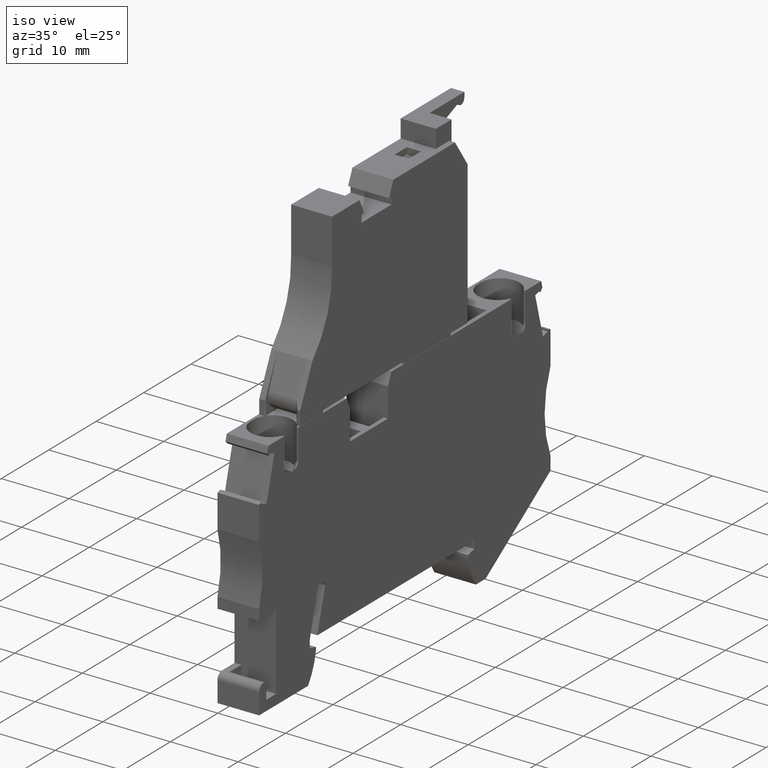
[diagram: clean part render]
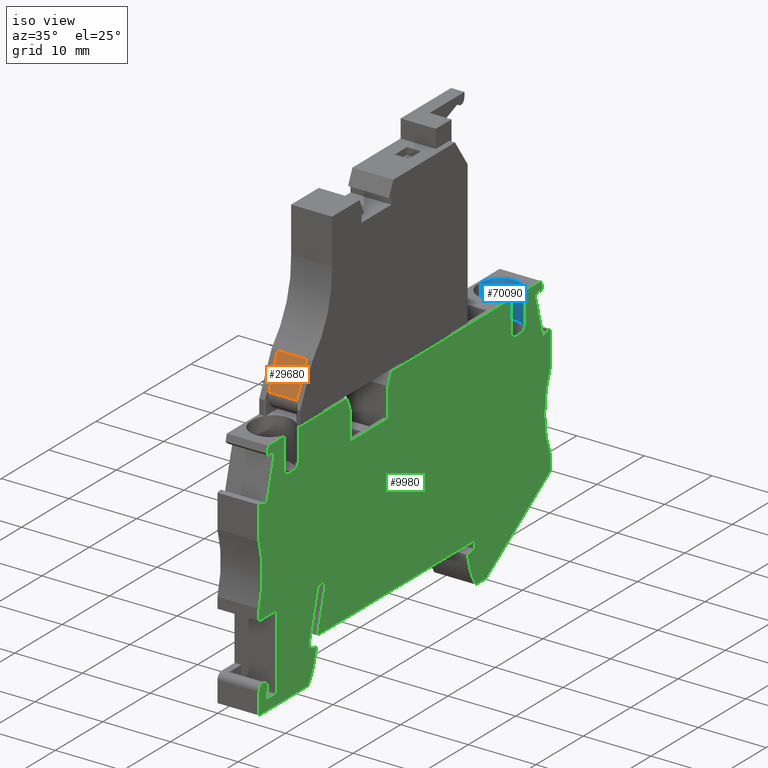
[diagram: same view with three faces highlighted in distinct colors, each labeled with its STEP entity id]
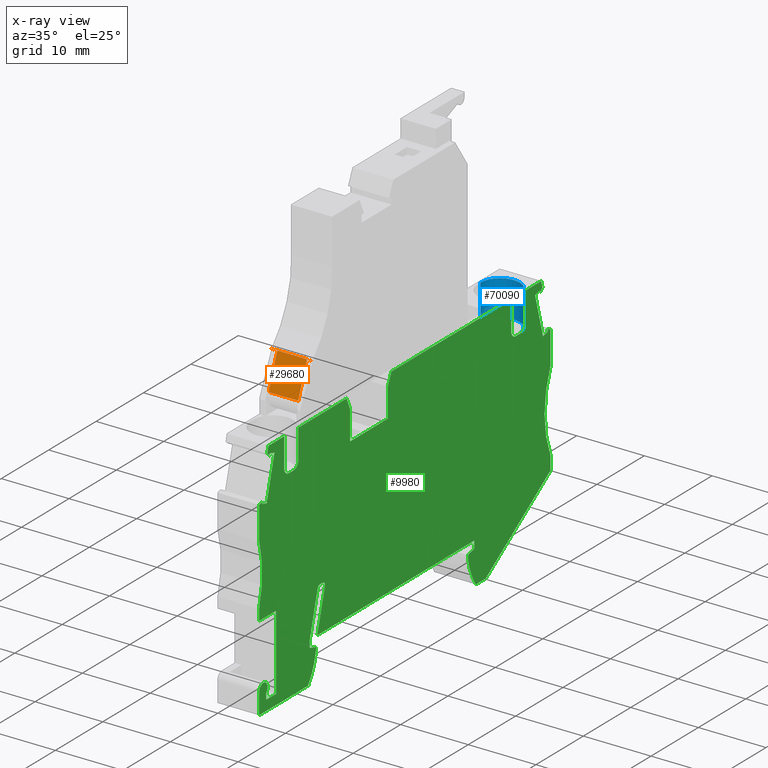
[diagram: x-ray of the same camera — body ghosted, the three highlighted faces saturated]
A machine part, iso view with three faces highlighted in distinct colors.
The next image is the same camera in x-ray (body ghosted, the three faces saturated) — at least one of them is partly hidden behind the body in this view.
Their STEP definitions:

[orange] entity #29680 — the highlighted planar face has unit normal (0, -0.9361, 0.3518).
#28970=CARTESIAN_POINT('',(-36.204426536731,26.8215328246752,
1.0500000034725));
#28980=DIRECTION('',(-0.936062640945186,0.351833387026763,0.));
#28990=DIRECTION('',(0.351833387026763,0.936062640945186,0.));
#29000=AXIS2_PLACEMENT_3D('',#28970,#28980,#28990);
#29010=PLANE('',#29000);
#29020=CARTESIAN_POINT('',(-48.7956797402226,-6.67785114815208,
-4.1999999965275));
#29030=DIRECTION('',(0.351833387026763,0.936062640945186,0.));
#29040=VECTOR('',#29030,1.);
#29050=LINE('',#29020,#29040);
#29060=CARTESIAN_POINT('',(-38.0285189992763,21.9684834246521,
-4.1999999965275));
#29070=VERTEX_POINT('',#29060);
#29080=CARTESIAN_POINT('',(-36.2089068698543,26.8096127721436,
-4.1999999965275));
#29090=VERTEX_POINT('',#29080);
#29100=EDGE_CURVE('',#29070,#29090,#29050,.T.);
#29110=ORIENTED_EDGE('',*,*,#29100,.F.);
#29120=CARTESIAN_POINT('',(-36.2089068698543,26.8096127721437,
-1.7999999965275));
#29130=DIRECTION('',(0.,0.,1.));
#29140=VECTOR('',#29130,1.);
#29150=LINE('',#29120,#29140);
#29160=CARTESIAN_POINT('',(-36.2089068698543,26.8096127721436,
-5.0749999965275));
#29170=VERTEX_POINT('',#29160);
#29180=EDGE_CURVE('',#29170,#29090,#29150,.T.);
#29190=ORIENTED_EDGE('',*,*,#29180,.T.);
#29200=CARTESIAN_POINT('',(-48.7956797402226,-6.67785114815199,
-5.0749999965275));
#29210=DIRECTION('',(-0.351833387026763,-0.936062640945186,0.));
#29220=VECTOR('',#29210,1.);
#29230=LINE('',#29200,#29220);
#29240=CARTESIAN_POINT('',(-36.204426536731,26.8215328246752,
-5.0749999965275));
#29250=VERTEX_POINT('',#29240);
#29260=EDGE_CURVE('',#29250,#29170,#29230,.T.);
#29270=ORIENTED_EDGE('',*,*,#29260,.T.);
#29280=CARTESIAN_POINT('',(-36.204426536731,26.8215328246752,
1.0500000034725));
#29290=DIRECTION('',(0.,0.,1.));
#29300=VECTOR('',#29290,1.);
#29310=LINE('',#29280,#29300);
#29320=CARTESIAN_POINT('',(-36.204426536731,26.8215328246752,
0.974999999999994));
#29330=VERTEX_POINT('',#29320);
#29340=EDGE_CURVE('',#29250,#29330,#29310,.T.);
#29350=ORIENTED_EDGE('',*,*,#29340,.F.);
#29360=CARTESIAN_POINT('',(-48.7956797402226,-6.67785114815199,
0.974999999999994));
#29370=DIRECTION('',(0.351833387026763,0.936062640945186,0.));
#29380=VECTOR('',#29370,1.);
#29390=LINE('',#29360,#29380);
#29400=CARTESIAN_POINT('',(-36.2089068698543,26.8096127721436,
0.974999999999994));
#29410=VERTEX_POINT('',#29400);
#29420=EDGE_CURVE('',#29410,#29330,#29390,.T.);
#29430=ORIENTED_EDGE('',*,*,#29420,.T.);
#29440=CARTESIAN_POINT('',(-36.2089068698543,26.8096127721437,
-1.7999999965275));
#29450=DIRECTION('',(0.,0.,1.));
#29460=VECTOR('',#29450,1.);
#29470=LINE('',#29440,#29460);
#29480=CARTESIAN_POINT('',(-36.2089068698543,26.8096127721436,
0.150000003472497));
#29490=VERTEX_POINT('',#29480);
#29500=EDGE_CURVE('',#29490,#29410,#29470,.T.);
#29510=ORIENTED_EDGE('',*,*,#29500,.T.);
#29520=CARTESIAN_POINT('',(-48.7956797402226,-6.67785114815208,
0.150000003472497));
#29530=DIRECTION('',(-0.351833387026763,-0.936062640945186,0.));
#29540=VECTOR('',#29530,1.);
#29550=LINE('',#29520,#29540);
#29560=CARTESIAN_POINT('',(-38.0285189992763,21.9684834246521,
0.150000003472497));
#29570=VERTEX_POINT('',#29560);
#29580=EDGE_CURVE('',#29490,#29570,#29550,.T.);
#29590=ORIENTED_EDGE('',*,*,#29580,.F.);
#29600=CARTESIAN_POINT('',(-38.0285189992763,21.9684834246521,
1.0500000034725));
#29610=DIRECTION('',(0.,0.,1.));
#29620=VECTOR('',#29610,1.);
#29630=LINE('',#29600,#29620);
#29640=EDGE_CURVE('',#29070,#29570,#29630,.T.);
#29650=ORIENTED_EDGE('',*,*,#29640,.T.);
#29660=EDGE_LOOP('',(#29650,#29590,#29510,#29430,#29350,#29270,#29190,
#29110));
#29670=FACE_OUTER_BOUND('',#29660,.T.);
#29680=ADVANCED_FACE('',(#29670),#29010,.T.);

[blue] entity #70090 — the highlighted cylindrical surface (edge-blend (fillet) strip) has radius 2.9 mm, axis along (0, -0, 1).
#18180=CARTESIAN_POINT('',(8.7,19.0500000000001,0.740075756488798));
#18190=VERTEX_POINT('',#18180);
#18220=CARTESIAN_POINT('',(7.49999999999996,19.0500000000001,-1.9));
#18230=DIRECTION('',(7.105427357601E-15,-1.,-1.11022302462516E-16));
#18240=DIRECTION('',(1.,7.105427357601E-15,-1.51526992781977E-34));
#18250=AXIS2_PLACEMENT_3D('',#18220,#18230,#18240);
#18260=CIRCLE('',#18250,2.9);
#18270=CARTESIAN_POINT('',(7.49999999999999,19.0500000000001,
-4.80000000000001));
#18280=VERTEX_POINT('',#18270);
#18290=EDGE_CURVE('',#18280,#18190,#18260,.T.);
#65570=CARTESIAN_POINT('',(7.5,13.7499999999996,-4.80000000000001));
#65580=VERTEX_POINT('',#65570);
#65610=CARTESIAN_POINT('',(7.5,13.7499999999996,-1.90000000000001));
#65620=DIRECTION('',(-3.52209750882182E-15,1.,8.61273212099416E-17));
#65630=DIRECTION('',(-8.39331519952022E-32,8.61273212099416E-17,-1.));
#65640=AXIS2_PLACEMENT_3D('',#65610,#65620,#65630);
#65650=CIRCLE('',#65640,2.9);
#65660=CARTESIAN_POINT('',(7.70000000000005,13.7499999999996,
0.993095228297882));
#65670=VERTEX_POINT('',#65660);
#65680=EDGE_CURVE('',#65670,#65580,#65650,.T.);
#68790=CARTESIAN_POINT('',(7.70000000000005,14.7499999999996,
-1.7999999965275));
#68800=DIRECTION('',(5.42824862998643E-32,0.,1.));
#68810=DIRECTION('',(1.,0.,-5.42824862998643E-32));
#68820=AXIS2_PLACEMENT_3D('',#68790,#68800,#68810);
#68830=CYLINDRICAL_SURFACE('',#68820,1.);
#68860=CARTESIAN_POINT('',(7.49999999999998,16.0499999999995,-1.9));
#68870=DIRECTION('',(-7.105427357601E-15,1.,1.11022302462516E-16));
#68880=DIRECTION('',(1.,7.105427357601E-15,-1.51526992781977E-34));
#68890=AXIS2_PLACEMENT_3D('',#68860,#68870,#68880);
#68900=CYLINDRICAL_SURFACE('',#68890,2.9);
#68910=CARTESIAN_POINT('',(7.70000000000799,13.7499999999996,
0.993095228297332));
#68920=CARTESIAN_POINT('',(7.71651364547582,13.7499999999997,
0.991953638120351));
#68930=CARTESIAN_POINT('',(7.7330215891157,13.7504093540227,
0.990670195700232));
#68940=CARTESIAN_POINT('',(7.7494903154487,13.7512253964594,
0.989248099851811));
#68950=CARTESIAN_POINT('',(7.76596134597498,13.7520415530714,
0.987825805033316));
#68960=CARTESIAN_POINT('',(7.78238297808014,13.7532635333169,
0.986265862354011));
#68970=CARTESIAN_POINT('',(7.79875065593857,13.7548877912755,
0.984570686527939));
#68980=CARTESIAN_POINT('',(7.81512258012449,13.7565124706214,
0.982875070916103));
#68990=CARTESIAN_POINT('',(7.83145342696692,13.7585413666225,
0.981042660288794));
#69000=CARTESIAN_POINT('',(7.84771163076227,13.7609695282053,
0.979079127400397));
#69010=CARTESIAN_POINT('',(7.86396982799423,13.7633976888079,
0.977115595304674));
#69020=CARTESIAN_POINT('',(7.88015509534979,13.7662250722532,
0.975020979484978));
#69030=CARTESIAN_POINT('',(7.89623642830969,13.7694433906168,
0.97280293317874));
#69040=CARTESIAN_POINT('',(7.92839394645242,13.7758789971318,
0.968367550582524));
#69050=CARTESIAN_POINT('',(7.96012595861505,13.7838713823479,
0.963440622605584));
#69060=CARTESIAN_POINT('',(7.99141732697047,13.793403982058,
0.958060358136819));
#69070=CARTESIAN_POINT('',(8.00705543360096,13.7981679734898,
0.955371528792345));
#69080=CARTESIAN_POINT('',(8.02256588253471,13.8033123844395,
0.952572364357332));
#69090=CARTESIAN_POINT('',(8.03792145314049,13.8088256848445,
0.949673755055333));
#69100=CARTESIAN_POINT('',(8.05327703039631,13.8143389876371,
0.946775144498034));
#69110=CARTESIAN_POINT('',(8.06847751743933,13.8202210985288,
0.943777139406916));
#69120=CARTESIAN_POINT('',(8.08349711934313,13.8264579276198,
0.940692012823328));
#69130=CARTESIAN_POINT('',(8.09852200770671,13.8326969518919,
0.937605800365581));
#69140=CARTESIAN_POINT('',(8.11334081361339,13.8392789256607,
0.934438016217834));
#69150=CARTESIAN_POINT('',(8.12801157426129,13.8462267472982,
0.931183756416003));
#69160=CARTESIAN_POINT('',(8.14268163047964,13.8531742353299,
0.927929652870337));
#69170=CARTESIAN_POINT('',(8.15719080534908,13.860483027759,
0.924591489279415));
#69180=CARTESIAN_POINT('',(8.17151593970687,13.8681424612747,
0.921181728056292));
#69190=CARTESIAN_POINT('',(8.20016661966412,13.8834615481907,
0.914362107723639));
#69200=CARTESIAN_POINT('',(8.22807810075664,13.9001841469548,
0.907255629295271));
#69210=CARTESIAN_POINT('',(8.25507592222289,13.9182003122272,
0.899975062688316));
#69220=CARTESIAN_POINT('',(8.28207375311593,13.9362164837902,
0.892694493539218));
#69230=CARTESIAN_POINT('',(8.30815381873164,13.9555233881669,
0.885241325083818));
#69240=CARTESIAN_POINT('',(8.33316491507566,13.9759830813746,
0.877739408995529));
#69250=CARTESIAN_POINT('',(8.34567031848143,13.9862128095561,
0.873988494373079));
#69260=CARTESIAN_POINT('',(8.35790854445817,13.9967300639378,
0.870225618825389));
#69270=CARTESIAN_POINT('',(8.36986345143471,14.0075156860696,
0.86646662294308));
#69280=CARTESIAN_POINT('',(8.38181593328862,14.0182991202751,
0.862708389595013));
#69290=CARTESIAN_POINT('',(8.39353611835936,14.0293967223635,
0.858937999448716));
#69300=CARTESIAN_POINT('',(8.4050031236605,14.0407958011757,
0.85517138235803));
#69310=CARTESIAN_POINT('',(8.42793722439056,14.063594048394,
0.847638118571986));
#69320=CARTESIAN_POINT('',(8.44985543402762,14.0875982765376,
0.840120281755448));
#69330=CARTESIAN_POINT('',(8.47059745790219,14.1126778225426,
0.832753295618532));
#69340=CARTESIAN_POINT('',(8.49133934364659,14.1377572015319,
0.825386358541582));
#69350=CARTESIAN_POINT('',(8.510901835242,14.1639082374768,
0.818171882525787));
#69360=CARTESIAN_POINT('',(8.52914828381245,14.1909712677752,
0.811245804040397));
#69370=CARTESIAN_POINT('',(8.5473948576908,14.2180344839296,
0.804319677990008));
#69380=CARTESIAN_POINT('',(8.56432261285956,14.2460053478474,
0.797683538937366));
#69390=CARTESIAN_POINT('',(8.57982757468844,14.2747069968763,
0.791462875267371));
#69400=CARTESIAN_POINT('',(8.58757998246785,14.2890576860085,
0.78835257277449));
#69410=CARTESIAN_POINT('',(8.59497699447864,14.3035904489144,
0.78534600659968));
#69420=CARTESIAN_POINT('',(8.60200892647044,14.3182826195668,
0.78245714336305));
#69430=CARTESIAN_POINT('',(8.60903529241892,14.3329631608038,
0.779570566772243));
#69440=CARTESIAN_POINT('',(8.61572454033382,14.347859304485,
0.776790253875897));
#69450=CARTESIAN_POINT('',(8.62206725615206,14.3629703175044,
0.774128843693097));
#69460=CARTESIAN_POINT('',(8.62840913823382,14.3780793442134,
0.771467783346995));
#69470=CARTESIAN_POINT('',(8.63440060265592,14.393394878581,
0.768927249864573));
#69480=CARTESIAN_POINT('',(8.64002322522107,14.4088895544763,
0.766523400601717));
#69490=CARTESIAN_POINT('',(8.64564582965089,14.4243841803948,
0.764119559092287));
#69500=CARTESIAN_POINT('',(8.65089946982369,14.4400576782165,
0.761852474034192));
#69510=CARTESIAN_POINT('',(8.65576842202222,14.4558797465908,
0.759736707769446));
#69520=CARTESIAN_POINT('',(8.66063736673384,14.4717017906357,
0.757620944758086));
#69530=CARTESIAN_POINT('',(8.66512151487049,14.4876720977453,
0.755656566760995));
#69540=CARTESIAN_POINT('',(8.66920843659534,14.5037582358073,
0.753855993039991));
#69550=CARTESIAN_POINT('',(8.67329535919614,14.5198443773171,
0.752055418933069));
#69560=CARTESIAN_POINT('',(8.67698496684321,14.5360460109789,
0.750418704664186));
#69570=CARTESIAN_POINT('',(8.68026852770263,14.552329532818,
0.748955681493112));
#69580=CARTESIAN_POINT('',(8.68355209550207,14.5686130890733,
0.747492655229847));
#69590=CARTESIAN_POINT('',(8.68642955447926,14.5849781738373,
0.746203360462804));
#69600=CARTESIAN_POINT('',(8.68889605446914,14.6013911393773,
0.745094737749044));
#69610=CARTESIAN_POINT('',(8.69136256490385,14.6178041744209,
0.743986110340627));
#69620=CARTESIAN_POINT('',(8.69341808664726,14.6342647246701,
0.743058176434919));
#69630=CARTESIAN_POINT('',(8.69506157160451,14.6507403973606,
0.742314863916511));
#69640=CARTESIAN_POINT('',(8.69670594629765,14.6672249895105,
0.741571148989903));
#69650=CARTESIAN_POINT('',(8.69793592189138,14.6836807785439,
0.741013128870277));
#69660=CARTESIAN_POINT('',(8.69876038465499,14.7002235593483,
0.740638850767328));
#69670=CARTESIAN_POINT('',(8.69958475202393,14.7167644260661,
0.74026461597032));
#69680=CARTESIAN_POINT('',(8.70000000000007,14.7333678115897,
0.740075756488782));
#69690=CARTESIAN_POINT('',(8.70000000000005,14.7500000000008,
0.740075756488791));
#69700=B_SPLINE_CURVE_WITH_KNOTS('',3,(#68910,#68920,#68930,#68940,
#68950,#68960,#68970,#68980,#68990,#69000,#69010,#69020,#69030,#69040,
#69050,#69060,#69070,#69080,#69090,#69100,#69110,#69120,#69130,#69140,
#69150,#69160,#69170,#69180,#69190,#69200,#69210,#69220,#69230,#69240,
#69250,#69260,#69270,#69280,#69290,#69300,#69310,#69320,#69330,#69340,
#69350,#69360,#69370,#69380,#69390,#69400,#69410,#69420,#69430,#69440,
#69450,#69460,#69470,#69480,#69490,#69500,#69510,#69520,#69530,#69540,
#69550,#69560,#69570,#69580,#69590,#69600,#69610,#69620,#69630,#69640,
#69650,#69660,#69670,#69680,#69690),.UNSPECIFIED.,.F.,.F.,(4,3,3,3,3,3,3
,3,3,3,3,3,3,3,3,3,3,3,3,3,3,3,3,3,3,3,4),(0.,0.0496603814106529,
0.0992832165273295,0.14893066883405,0.198593465825866,0.297887334083293,
0.347599625450527,0.397290794990891,0.446921845132689,0.496655688566395,
0.596382573087288,0.696075308985867,0.745760524508754,0.79546366852819,
0.895362262553768,0.995504221933677,1.09540137789537,1.14512522769704,
1.19481638298259,1.2447100985559,1.29473625881006,1.34481771463799,
1.39487875970535,1.4448486379561,1.49466529277264,1.5443209152102,
1.59412217653465),.UNSPECIFIED.);
#69710=SURFACE_CURVE('',#69700,(#68830,#68900),.CURVE_3D.);
#69720=CARTESIAN_POINT('',(8.70000000000003,14.7499999999996,
0.740075756488798));
#69730=VERTEX_POINT('',#69720);
#69740=EDGE_CURVE('',#65670,#69730,#69710,.T.);
#69920=ORIENTED_EDGE('',*,*,#69740,.T.);
#69930=ORIENTED_EDGE('',*,*,#65680,.F.);
#69940=CARTESIAN_POINT('',(7.49999999999999,12.6999999999996,
-4.80000000000001));
#69950=DIRECTION('',(6.12323399573676E-17,1.,6.12323399573676E-17));
#69960=VECTOR('',#69950,1.);
#69970=LINE('',#69940,#69960);
#69980=EDGE_CURVE('',#65580,#18280,#69970,.T.);
#69990=ORIENTED_EDGE('',*,*,#69980,.F.);
#70000=ORIENTED_EDGE('',*,*,#18290,.F.);
#70010=CARTESIAN_POINT('',(8.70000000000003,16.0499999999995,
0.740075756488796));
#70020=DIRECTION('',(-7.105427357601E-15,1.,1.11022302462516E-16));
#70030=VECTOR('',#70020,1.);
#70040=LINE('',#70010,#70030);
#70050=EDGE_CURVE('',#69730,#18190,#70040,.T.);
#70060=ORIENTED_EDGE('',*,*,#70050,.T.);
#70070=EDGE_LOOP('',(#70060,#70000,#69990,#69930,#69920));
#70080=FACE_OUTER_BOUND('',#70070,.T.);
#70090=ADVANCED_FACE('',(#70080),#68900,.F.);

[green] entity #9980 — the highlighted planar face has unit normal (1, -0, -0).
#4310=CARTESIAN_POINT('',(-30.0188631759523,19.0570226550339,
0.999999999999994));
#4320=DIRECTION('',(-0.,0.,1.));
#4330=DIRECTION('',(0.999999870220948,-0.000509468435137389,0.));
#4340=AXIS2_PLACEMENT_3D('',#4310,#4320,#4330);
#4350=PLANE('',#4340);
#4360=CARTESIAN_POINT('',(-17.2402011528858,10.137729793627,
0.999999999999994));
#4370=DIRECTION('',(0.965925826289102,0.258819045102394,0.));
#4380=VECTOR('',#4370,1.);
#4390=LINE('',#4360,#4380);
#4400=CARTESIAN_POINT('',(10.7610034477983,17.640629953475,
0.999999999999994));
#4410=VERTEX_POINT('',#4400);
#4420=CARTESIAN_POINT('',(11.7950480447559,17.9177013681674,
0.999999999999994));
#4430=VERTEX_POINT('',#4420);
#4440=EDGE_CURVE('',#4410,#4430,#4390,.T.);
#4450=ORIENTED_EDGE('',*,*,#4440,.T.);
#4460=CARTESIAN_POINT('',(17.2771208201357,-6.67785114815208,
0.999999999999996));
#4470=DIRECTION('',(-0.258819045102705,0.965925826289019,0.));
#4480=VECTOR('',#4470,1.);
#4490=LINE('',#4460,#4480);
#4500=CARTESIAN_POINT('',(12.3980339080727,11.5311491021973,
0.999999999999995));
#4510=VERTEX_POINT('',#4500);
#4520=EDGE_CURVE('',#4510,#4410,#4490,.T.);
#4530=ORIENTED_EDGE('',*,*,#4520,.T.);
#4540=CARTESIAN_POINT('',(-17.2402011528858,3.58960795254256,
0.999999999999994));
#4550=DIRECTION('',(-0.965925826289173,-0.25881904510213,0.));
#4560=VECTOR('',#4550,1.);
#4570=LINE('',#4540,#4560);
#4580=CARTESIAN_POINT('',(13.4320785050296,11.8082205168892,
0.999999999999994));
#4590=VERTEX_POINT('',#4580);
#4600=EDGE_CURVE('',#4590,#4510,#4570,.T.);
#4610=ORIENTED_EDGE('',*,*,#4600,.T.);
#4620=CARTESIAN_POINT('',(18.3854064789574,-6.67785114815199,
0.999999999999994));
#4630=DIRECTION('',(-0.258819045105261,0.965925826288334,0.));
#4640=VECTOR('',#4630,1.);
#4650=LINE('',#4620,#4640);
#4660=CARTESIAN_POINT('',(13.3616780698738,12.0709585177625,
0.999999999999994));
#4670=VERTEX_POINT('',#4660);
#4680=EDGE_CURVE('',#4590,#4670,#4650,.T.);
#4690=ORIENTED_EDGE('',*,*,#4680,.F.);
#4700=CARTESIAN_POINT('',(-17.2402011528858,20.2707073421386,
1.00000000595621));
#4710=DIRECTION('',(-0.965925826290939,0.25881904509554,0.));
#4720=VECTOR('',#4710,1.);
#4730=LINE('',#4700,#4720);
#4740=CARTESIAN_POINT('',(13.9999999999991,11.8999206720793,
0.999999999999994));
#4750=VERTEX_POINT('',#4740);
#4760=EDGE_CURVE('',#4750,#4670,#4730,.T.);
#4770=ORIENTED_EDGE('',*,*,#4760,.T.);
#4780=CARTESIAN_POINT('',(13.9999999999991,-6.67785114815208,
1.00000000595621));
#4790=DIRECTION('',(0.,1.,0.));
#4800=VECTOR('',#4790,1.);
#4810=LINE('',#4780,#4800);
#4820=CARTESIAN_POINT('',(13.9999999999991,6.99999999999569,
0.999999999999994));
#4830=VERTEX_POINT('',#4820);
#4840=EDGE_CURVE('',#4830,#4750,#4810,.T.);
#4850=ORIENTED_EDGE('',*,*,#4840,.T.);
#4860=CARTESIAN_POINT('',(27.747727084868,0.999999999998607,
0.999999999999997));
#4870=DIRECTION('',(0.,0.,1.));
#4880=DIRECTION('',(1.,0.,0.));
#4890=AXIS2_PLACEMENT_3D('',#4860,#4870,#4880);
#4900=CIRCLE('',#4890,15.);
#4910=CARTESIAN_POINT('',(14.0000000000004,-5.00000000000137,
0.999999999999994));
#4920=VERTEX_POINT('',#4910);
#4930=EDGE_CURVE('',#4830,#4920,#4900,.T.);
#4940=ORIENTED_EDGE('',*,*,#4930,.F.);
#4950=CARTESIAN_POINT('',(14.0000000000004,-6.67785114815208,
0.999999999999996));
#4960=DIRECTION('',(2.22577976528388E-15,-1.,0.));
#4970=VECTOR('',#4960,1.);
#4980=LINE('',#4950,#4970);
#4990=CARTESIAN_POINT('',(14.0000000000004,-7.0000000000001,
0.999999999999994));
#5000=VERTEX_POINT('',#4990);
#5010=EDGE_CURVE('',#4920,#5000,#4980,.T.);
#5020=ORIENTED_EDGE('',*,*,#5010,.F.);
#5030=CARTESIAN_POINT('',(-17.2402011528858,-27.993495729806,
0.999999999999997));
#5040=DIRECTION('',(-0.830000578902483,-0.557762529237617,0.));
#5050=VECTOR('',#5040,1.);
#5060=LINE('',#5030,#5050);
#5070=CARTESIAN_POINT('',(0.309576341852736,-16.2000000000002,
0.999999999999994));
#5080=VERTEX_POINT('',#5070);
#5090=EDGE_CURVE('',#5000,#5080,#5060,.T.);
#5100=ORIENTED_EDGE('',*,*,#5090,.F.);
#5110=CARTESIAN_POINT('',(-17.2402011528858,-16.1999999999992,
0.999999999999996));
#5120=DIRECTION('',(-1.,5.79120085220097E-14,0.));
#5130=VECTOR('',#5120,1.);
#5140=LINE('',#5110,#5130);
#5150=CARTESIAN_POINT('',(-1.74105634686779,-16.2000000000001,
0.999999999999994));
#5160=VERTEX_POINT('',#5150);
#5170=EDGE_CURVE('',#5080,#5160,#5140,.T.);
#5180=ORIENTED_EDGE('',*,*,#5170,.F.);
#5190=CARTESIAN_POINT('',(5.99397267937623,-10.684628211703,
1.00000000595621));
#5200=DIRECTION('',(0.,0.,-1.));
#5210=DIRECTION('',(-1.,1.84889274661175E-32,0.));
#5220=AXIS2_PLACEMENT_3D('',#5190,#5200,#5210);
#5230=CIRCLE('',#5220,9.499999999999);
#5240=CARTESIAN_POINT('',(-3.40000000000019,-12.1000000000012,
0.999999999999994));
#5250=VERTEX_POINT('',#5240);
#5260=EDGE_CURVE('',#5160,#5250,#5230,.T.);
#5270=ORIENTED_EDGE('',*,*,#5260,.F.);
#5280=CARTESIAN_POINT('',(-3.39999999999644,-6.67785114815208,
0.999999999999996));
#5290=DIRECTION('',(6.9022565440946E-13,1.,0.));
#5300=VECTOR('',#5290,1.);
#5310=LINE('',#5280,#5300);
#5320=CARTESIAN_POINT('',(-3.39999999999986,-11.6483339501604,
0.999999999999994));
#5330=VERTEX_POINT('',#5320);
#5340=EDGE_CURVE('',#5250,#5330,#5310,.T.);
#5350=ORIENTED_EDGE('',*,*,#5340,.F.);
#5360=CARTESIAN_POINT('',(-17.2402011528858,-15.3568046721595,
0.999999999999996));
#5370=DIRECTION('',(0.965925826289086,0.258819045102457,0.));
#5380=VECTOR('',#5370,1.);
#5390=LINE('',#5360,#5380);
#5400=CARTESIAN_POINT('',(-2.09999999999969,-11.3,0.999999999999994));
#5410=VERTEX_POINT('',#5400);
#5420=EDGE_CURVE('',#5330,#5410,#5390,.T.);
#5430=ORIENTED_EDGE('',*,*,#5420,.F.);
#5440=CARTESIAN_POINT('',(-2.0999999999997,-6.67785114815208,
0.999999999999996));
#5450=DIRECTION('',(0.,1.,0.));
#5460=VECTOR('',#5450,1.);
#5470=LINE('',#5440,#5460);
#5480=CARTESIAN_POINT('',(-2.0999999999997,-10.2000000000001,
0.999999999999994));
#5490=VERTEX_POINT('',#5480);
#5500=EDGE_CURVE('',#5410,#5490,#5470,.T.);
#5510=ORIENTED_EDGE('',*,*,#5500,.F.);
#5520=CARTESIAN_POINT('',(-17.2402011528858,-10.2000000000001,
0.999999999999996));
#5530=DIRECTION('',(-1.,0.,0.));
#5540=VECTOR('',#5530,1.);
#5550=LINE('',#5520,#5540);
#5560=CARTESIAN_POINT('',(-35.2000000000002,-10.2000000000001,
0.999999999999994));
#5570=VERTEX_POINT('',#5560);
#5580=EDGE_CURVE('',#5490,#5570,#5550,.T.);
#5590=ORIENTED_EDGE('',*,*,#5580,.F.);
#5600=CARTESIAN_POINT('',(-34.2562430595234,-6.67785114815208,
0.999999999999996));
#5610=DIRECTION('',(0.258819045102995,0.965925826288942,0.));
#5620=VECTOR('',#5610,1.);
#5630=LINE('',#5600,#5620);
#5640=CARTESIAN_POINT('',(-33.6001851032276,-4.22940952255101,
0.999999999999994));
#5650=VERTEX_POINT('',#5640);
#5660=EDGE_CURVE('',#5570,#5650,#5630,.T.);
#5670=ORIENTED_EDGE('',*,*,#5660,.F.);
#5680=CARTESIAN_POINT('',(-34.0831480163721,-4.09999999999952,
0.999999999999996));
#5690=DIRECTION('',(0.,0.,-1.));
#5700=DIRECTION('',(-1.,0.,0.));
#5710=AXIS2_PLACEMENT_3D('',#5680,#5690,#5700);
#5720=CIRCLE('',#5710,0.5);
#5730=CARTESIAN_POINT('',(-34.0831480163721,-3.59999999999952,
0.999999999999994));
#5740=VERTEX_POINT('',#5730);
#5750=EDGE_CURVE('',#5740,#5650,#5720,.T.);
#5760=ORIENTED_EDGE('',*,*,#5750,.T.);
#5770=CARTESIAN_POINT('',(-17.2402011528858,-3.59999999999952,
0.999999999999996));
#5780=DIRECTION('',(1.,0.,0.));
#5790=VECTOR('',#5780,1.);
#5800=LINE('',#5770,#5790);
#5810=CARTESIAN_POINT('',(-34.647871835965,-3.59999999999952,
0.999999999999994));
#5820=VERTEX_POINT('',#5810);
#5830=EDGE_CURVE('',#5820,#5740,#5800,.T.);
#5840=ORIENTED_EDGE('',*,*,#5830,.T.);
#5850=CARTESIAN_POINT('',(-34.647871835965,-4.09999999999952,
0.999999999999996));
#5860=DIRECTION('',(0.,0.,-1.));
#5870=DIRECTION('',(-1.,0.,0.));
#5880=AXIS2_PLACEMENT_3D('',#5850,#5860,#5870);
#5890=CIRCLE('',#5880,0.5);
#5900=CARTESIAN_POINT('',(-35.1308347491095,-3.97059047744794,
0.999999999999994));
#5910=VERTEX_POINT('',#5900);
#5920=EDGE_CURVE('',#5910,#5820,#5890,.T.);
#5930=ORIENTED_EDGE('',*,*,#5920,.T.);
#5940=CARTESIAN_POINT('',(-35.8562430595272,-6.67785114815208,
0.999999999999996));
#5950=DIRECTION('',(0.258819045103168,0.965925826288895,0.));
#5960=VECTOR('',#5950,1.);
#5970=LINE('',#5940,#5960);
#5980=CARTESIAN_POINT('',(-36.7999999999994,-10.1999999999806,
0.999999999999994));
#5990=VERTEX_POINT('',#5980);
#6000=EDGE_CURVE('',#5990,#5910,#5970,.T.);
#6010=ORIENTED_EDGE('',*,*,#6000,.T.);
#6020=CARTESIAN_POINT('',(-36.7999999999994,-6.67785114815208,
0.999999999999996));
#6030=DIRECTION('',(0.,-1.,0.));
#6040=VECTOR('',#6030,1.);
#6050=LINE('',#6020,#6040);
#6060=CARTESIAN_POINT('',(-36.7999999999994,-11.3,0.999999999999994));
#6070=VERTEX_POINT('',#6060);
#6080=EDGE_CURVE('',#5990,#6070,#6050,.T.);
#6090=ORIENTED_EDGE('',*,*,#6080,.F.);
#6100=CARTESIAN_POINT('',(-17.2402011528858,-16.5410323052016,
0.999999999999996));
#6110=DIRECTION('',(0.96592582628904,-0.258819045102626,0.));
#6120=VECTOR('',#6110,1.);
#6130=LINE('',#6100,#6120);
#6140=CARTESIAN_POINT('',(-35.5000000000001,-11.6483339501604,
0.999999999999994));
#6150=VERTEX_POINT('',#6140);
#6160=EDGE_CURVE('',#6070,#6150,#6130,.T.);
#6170=ORIENTED_EDGE('',*,*,#6160,.F.);
#6180=CARTESIAN_POINT('',(-35.5000000000001,-6.67785114815208,
0.999999999999996));
#6190=DIRECTION('',(0.,-1.,0.));
#6200=VECTOR('',#6190,1.);
#6210=LINE('',#6180,#6200);
#6220=CARTESIAN_POINT('',(-35.5000000000001,-12.100000000001,
0.999999999999994));
#6230=VERTEX_POINT('',#6220);
#6240=EDGE_CURVE('',#6150,#6230,#6210,.T.);
#6250=ORIENTED_EDGE('',*,*,#6240,.F.);
#6260=CARTESIAN_POINT('',(-44.8939726793762,-10.6846282117025,
0.999999999999994));
#6270=DIRECTION('',(-2.18952885050753E-47,0.,1.));
#6280=DIRECTION('',(1.,0.,2.18952885050753E-47));
#6290=AXIS2_PLACEMENT_3D('',#6260,#6270,#6280);
#6300=CIRCLE('',#6290,9.499999999999);
#6310=CARTESIAN_POINT('',(-37.1589436531324,-16.1999999999999,
0.999999999999994));
#6320=VERTEX_POINT('',#6310);
#6330=EDGE_CURVE('',#6320,#6230,#6300,.T.);
#6340=ORIENTED_EDGE('',*,*,#6330,.T.);
#6350=CARTESIAN_POINT('',(-17.2402011528858,-16.1999999999992,
0.999999999999996));
#6360=DIRECTION('',(-1.,-3.8219427622721E-14,0.));
#6370=VECTOR('',#6360,1.);
#6380=LINE('',#6350,#6370);
#6390=CARTESIAN_POINT('',(-47.5,-16.2000000000003,0.999999999999994));
#6400=VERTEX_POINT('',#6390);
#6410=EDGE_CURVE('',#6320,#6400,#6380,.T.);
#6420=ORIENTED_EDGE('',*,*,#6410,.F.);
#6430=CARTESIAN_POINT('',(-47.5,-6.67785114815208,0.999999999999996));
#6440=DIRECTION('',(0.,1.,0.));
#6450=VECTOR('',#6440,1.);
#6460=LINE('',#6430,#6450);
#6470=CARTESIAN_POINT('',(-47.5,-13.1000000000005,0.999999999999994));
#6480=VERTEX_POINT('',#6470);
#6490=EDGE_CURVE('',#6400,#6480,#6460,.T.);
#6500=ORIENTED_EDGE('',*,*,#6490,.F.);
#6510=CARTESIAN_POINT('',(-46.6,-13.1000000000005,1.00000000595621));
#6520=DIRECTION('',(0.,0.,1.));
#6530=DIRECTION('',(1.,0.,0.));
#6540=AXIS2_PLACEMENT_3D('',#6510,#6520,#6530);
#6550=CIRCLE('',#6540,0.9);
#6560=CARTESIAN_POINT('',(-46.5999999999994,-12.2000000000005,
0.999999999999994));
#6570=VERTEX_POINT('',#6560);
#6580=EDGE_CURVE('',#6570,#6480,#6550,.T.);
#6590=ORIENTED_EDGE('',*,*,#6580,.T.);
#6600=CARTESIAN_POINT('',(-46.5999999999994,-13.1000000000008,
1.00000000595621));
#6610=DIRECTION('',(0.,0.,1.));
#6620=DIRECTION('',(1.,-1.84889274661175E-32,0.));
#6630=AXIS2_PLACEMENT_3D('',#6600,#6610,#6620);
#6640=CIRCLE('',#6630,0.899999999999826);
#6650=CARTESIAN_POINT('',(-46.,-13.770820393251,0.999999999999994));
#6660=VERTEX_POINT('',#6650);
#6670=EDGE_CURVE('',#6660,#6570,#6640,.T.);
#6680=ORIENTED_EDGE('',*,*,#6670,.T.);
#6690=CARTESIAN_POINT('',(-46.,-6.67785114815208,1.00000000595621));
#6700=DIRECTION('',(1.84889274661175E-32,1.,0.));
#6710=VECTOR('',#6700,1.);
#6720=LINE('',#6690,#6710);
#6730=CARTESIAN_POINT('',(-46.,-14.7000000000009,0.999999999999994));
#6740=VERTEX_POINT('',#6730);
#6750=EDGE_CURVE('',#6740,#6660,#6720,.T.);
#6760=ORIENTED_EDGE('',*,*,#6750,.T.);
#6770=CARTESIAN_POINT('',(-17.2402011528858,-14.7000000000009,
1.00000000595621));
#6780=DIRECTION('',(-1.,0.,0.));
#6790=VECTOR('',#6780,1.);
#6800=LINE('',#6770,#6790);
#6810=CARTESIAN_POINT('',(-43.9,-14.7000000000009,0.999999999999994));
#6820=VERTEX_POINT('',#6810);
#6830=EDGE_CURVE('',#6820,#6740,#6800,.T.);
#6840=ORIENTED_EDGE('',*,*,#6830,.T.);
#6850=CARTESIAN_POINT('',(-43.9,-6.67785114815208,0.999999999999996));
#6860=DIRECTION('',(0.,1.,0.));
#6870=VECTOR('',#6860,1.);
#6880=LINE('',#6850,#6870);
#6890=CARTESIAN_POINT('',(-43.9,-3.59999999999924,0.999999999999994));
#6900=VERTEX_POINT('',#6890);
#6910=EDGE_CURVE('',#6820,#6900,#6880,.T.);
#6920=ORIENTED_EDGE('',*,*,#6910,.F.);
#6930=CARTESIAN_POINT('',(-17.2402011528858,-3.59999999999924,
0.999999999999996));
#6940=DIRECTION('',(1.,0.,0.));
#6950=VECTOR('',#6940,1.);
#6960=LINE('',#6930,#6950);
#6970=CARTESIAN_POINT('',(-47.4999999999999,-3.59999999999924,
0.999999999999994));
#6980=VERTEX_POINT('',#6970);
#6990=EDGE_CURVE('',#6980,#6900,#6960,.T.);
#7000=ORIENTED_EDGE('',*,*,#6990,.T.);
#7010=CARTESIAN_POINT('',(-47.4999999999999,-6.67785114815208,
0.999999999999996));
#7020=DIRECTION('',(0.,-1.,0.));
#7030=VECTOR('',#7020,1.);
#7040=LINE('',#7010,#7030);
#7050=CARTESIAN_POINT('',(-47.4999999999999,-2.00000000000136,
0.999999999999994));
#7060=VERTEX_POINT('',#7050);
#7070=EDGE_CURVE('',#7060,#6980,#7040,.T.);
#7080=ORIENTED_EDGE('',*,*,#7070,.T.);
#7090=CARTESIAN_POINT('',(-61.8090880212543,2.49999999999859,
0.999999999999996));
#7100=DIRECTION('',(0.,0.,1.));
#7110=DIRECTION('',(1.,0.,0.));
#7120=AXIS2_PLACEMENT_3D('',#7090,#7100,#7110);
#7130=CIRCLE('',#7120,15.0000000000002);
#7140=CARTESIAN_POINT('',(-47.4999999999999,6.9999999999986,
0.999999999999994));
#7150=VERTEX_POINT('',#7140);
#7160=EDGE_CURVE('',#7060,#7150,#7130,.T.);
#7170=ORIENTED_EDGE('',*,*,#7160,.F.);
#7180=CARTESIAN_POINT('',(-47.4999999999999,-6.67785114815208,
1.00000000595621));
#7190=DIRECTION('',(0.,-1.,0.));
#7200=VECTOR('',#7190,1.);
#7210=LINE('',#7180,#7200);
#7220=CARTESIAN_POINT('',(-47.4999999999999,11.8999206720789,
0.999999999999994));
#7230=VERTEX_POINT('',#7220);
#7240=EDGE_CURVE('',#7230,#7150,#7210,.T.);
#7250=ORIENTED_EDGE('',*,*,#7240,.T.);
#7260=CARTESIAN_POINT('',(-17.2402011528858,20.008009336057,
1.00000000595621));
#7270=DIRECTION('',(-0.965925826290939,-0.25881904509554,0.));
#7280=VECTOR('',#7270,1.);
#7290=LINE('',#7260,#7280);
#7300=CARTESIAN_POINT('',(-46.8616780698729,12.0709585177625,
0.999999999999994));
#7310=VERTEX_POINT('',#7300);
#7320=EDGE_CURVE('',#7310,#7230,#7290,.T.);
#7330=ORIENTED_EDGE('',*,*,#7320,.T.);
#7340=CARTESIAN_POINT('',(-51.8854064790759,-6.67785114815199,
0.999999999999994));
#7350=DIRECTION('',(0.258819045110997,0.965925826286797,0.));
#7360=VECTOR('',#7350,1.);
#7370=LINE('',#7340,#7360);
#7380=CARTESIAN_POINT('',(-46.9320785050304,11.8082205168891,
0.999999999999994));
#7390=VERTEX_POINT('',#7380);
#7400=EDGE_CURVE('',#7390,#7310,#7370,.T.);
#7410=ORIENTED_EDGE('',*,*,#7400,.T.);
#7420=CARTESIAN_POINT('',(-17.2402011528858,3.85230595863084,
0.999999999999994));
#7430=DIRECTION('',(-0.965925826289173,0.25881904510213,0.));
#7440=VECTOR('',#7430,1.);
#7450=LINE('',#7420,#7440);
#7460=CARTESIAN_POINT('',(-45.8980339080737,11.5311491021972,
0.999999999999995));
#7470=VERTEX_POINT('',#7460);
#7480=EDGE_CURVE('',#7470,#7390,#7450,.T.);
#7490=ORIENTED_EDGE('',*,*,#7480,.T.);
#7500=CARTESIAN_POINT('',(-50.7771208201366,-6.67785114815208,
0.999999999999996));
#7510=DIRECTION('',(-0.258819045102705,-0.965925826289019,0.));
#7520=VECTOR('',#7510,1.);
#7530=LINE('',#7500,#7520);
#7540=CARTESIAN_POINT('',(-44.2610034477991,17.640629953475,
0.999999999999995));
#7550=VERTEX_POINT('',#7540);
#7560=EDGE_CURVE('',#7550,#7470,#7530,.T.);
#7570=ORIENTED_EDGE('',*,*,#7560,.T.);
#7580=CARTESIAN_POINT('',(-17.2402011528858,10.4004277997157,
0.999999999999994));
#7590=DIRECTION('',(0.965925826289102,-0.258819045102394,0.));
#7600=VECTOR('',#7590,1.);
#7610=LINE('',#7580,#7600);
#7620=CARTESIAN_POINT('',(-45.2950480447567,17.9177013681674,
0.999999999999994));
#7630=VERTEX_POINT('',#7620);
#7640=EDGE_CURVE('',#7630,#7550,#7610,.T.);
#7650=ORIENTED_EDGE('',*,*,#7640,.T.);
#7660=CARTESIAN_POINT('',(-51.8854064788985,-6.67785114815199,
0.999999999999994));
#7670=DIRECTION('',(-0.2588190451024,-0.965925826289101,0.));
#7680=VECTOR('',#7670,1.);
#7690=LINE('',#7660,#7680);
#7700=CARTESIAN_POINT('',(-45.3654484799123,17.6549633672917,
0.999999999999994));
#7710=VERTEX_POINT('',#7700);
#7720=EDGE_CURVE('',#7630,#7710,#7690,.T.);
#7730=ORIENTED_EDGE('',*,*,#7720,.F.);
#7740=CARTESIAN_POINT('',(-17.2402011528858,-10.4702839596589,
1.00000000595621));
#7750=DIRECTION('',(0.707106781187503,-0.707106781185593,0.));
#7760=VECTOR('',#7750,1.);
#7770=LINE('',#7740,#7760);
#7780=CARTESIAN_POINT('',(-45.7977656682978,18.087280555676,
0.999999999999994));
#7790=VERTEX_POINT('',#7780);
#7800=EDGE_CURVE('',#7790,#7710,#7770,.T.);
#7810=ORIENTED_EDGE('',*,*,#7800,.T.);
#7820=CARTESIAN_POINT('',(-52.4335627088001,-6.67785114815208,
1.00000000595621));
#7830=DIRECTION('',(-0.258819045102926,-0.96592582628896,0.));
#7840=VECTOR('',#7830,1.);
#7850=LINE('',#7820,#7840);
#7860=CARTESIAN_POINT('',(-45.539805770653,19.0499999999948,
0.999999999999994));
#7870=VERTEX_POINT('',#7860);
#7880=EDGE_CURVE('',#7870,#7790,#7850,.T.);
#7890=ORIENTED_EDGE('',*,*,#7880,.T.);
#7900=CARTESIAN_POINT('',(-17.2402011528858,19.0500000000001,
0.999999999999996));
#7910=DIRECTION('',(-1.,0.,0.));
#7920=VECTOR('',#7910,1.);
#7930=LINE('',#7900,#7920);
#7940=CARTESIAN_POINT('',(-42.2000000000008,19.049999999997,
0.999999999999994));
#7950=VERTEX_POINT('',#7940);
#7960=EDGE_CURVE('',#7950,#7870,#7930,.T.);
#7970=ORIENTED_EDGE('',*,*,#7960,.T.);
#7980=CARTESIAN_POINT('',(-42.2000000000012,-6.67785114815208,1.));
#7990=DIRECTION('',(-1.41496223752446E-14,-1.,1.11022302462519E-16));
#8000=VECTOR('',#7990,1.);
#8010=LINE('',#7980,#8000);
#8020=CARTESIAN_POINT('',(-42.2000000000009,14.7499999999996,
0.999999999999994));
#8030=VERTEX_POINT('',#8020);
#8040=EDGE_CURVE('',#7950,#8030,#8010,.T.);
#8050=ORIENTED_EDGE('',*,*,#8040,.F.);
#8060=CARTESIAN_POINT('',(-41.2000000000009,14.7499999999996,
1.00000000595621));
#8070=DIRECTION('',(-1.50992907639959E-30,-1.11022302462516E-16,-1.));
#8080=DIRECTION('',(0.,-1.,1.11022302462516E-16));
#8090=AXIS2_PLACEMENT_3D('',#8060,#8070,#8080);
#8100=CIRCLE('',#8090,1.);
#8110=CARTESIAN_POINT('',(-41.2000000000009,13.7499999999996,
0.999999999999994));
#8120=VERTEX_POINT('',#8110);
#8130=EDGE_CURVE('',#8120,#8030,#8100,.T.);
#8140=ORIENTED_EDGE('',*,*,#8130,.T.);
#8150=CARTESIAN_POINT('',(-17.2402011528858,13.7499999999996,
1.00000000595621));
#8160=DIRECTION('',(1.,1.11022302462516E-16,0.));
#8170=VECTOR('',#8160,1.);
#8180=LINE('',#8150,#8170);
#8190=CARTESIAN_POINT('',(-41.000000000001,13.7499999999996,
0.999999999999994));
#8200=VERTEX_POINT('',#8190);
#8210=EDGE_CURVE('',#8120,#8200,#8180,.T.);
#8220=ORIENTED_EDGE('',*,*,#8210,.F.);
#8230=CARTESIAN_POINT('',(-17.2402011528858,13.7500000110611,
1.00000000595621));
#8240=DIRECTION('',(1.,4.81531056422605E-16,0.));
#8250=VECTOR('',#8240,1.);
#8260=LINE('',#8230,#8250);
#8270=CARTESIAN_POINT('',(-40.400000000024,13.7499999999996,
0.999999999999994));
#8280=VERTEX_POINT('',#8270);
#8290=EDGE_CURVE('',#8200,#8280,#8260,.T.);
#8300=ORIENTED_EDGE('',*,*,#8290,.F.);
#8310=CARTESIAN_POINT('',(-17.2402011528858,13.7499999999996,
1.00000000595621));
#8320=DIRECTION('',(-1.,-1.11022302462516E-16,0.));
#8330=VECTOR('',#8320,1.);
#8340=LINE('',#8310,#8330);
#8350=CARTESIAN_POINT('',(-40.2000000000009,13.7499999999996,
0.999999999999994));
#8360=VERTEX_POINT('',#8350);
#8370=EDGE_CURVE('',#8360,#8280,#8340,.T.);
#8380=ORIENTED_EDGE('',*,*,#8370,.T.);
#8390=CARTESIAN_POINT('',(-40.2000000000009,14.7499999999996,
1.00000000595621));
#8400=DIRECTION('',(-1.66533453693774E-16,-1.11022302462516E-16,-1.));
#8410=DIRECTION('',(-1.,0.,1.66533453693774E-16));
#8420=AXIS2_PLACEMENT_3D('',#8390,#8400,#8410);
#8430=CIRCLE('',#8420,1.);
#8440=CARTESIAN_POINT('',(-39.2000000000009,14.7499999999996,
0.999999999999994));
#8450=VERTEX_POINT('',#8440);
#8460=EDGE_CURVE('',#8450,#8360,#8430,.T.);
#8470=ORIENTED_EDGE('',*,*,#8460,.T.);
#8480=CARTESIAN_POINT('',(-39.2000000000006,-6.67785114815208,
1.00000000595621));
#8490=DIRECTION('',(-1.42606446777072E-14,1.,0.));
#8500=VECTOR('',#8490,1.);
#8510=LINE('',#8480,#8500);
#8520=CARTESIAN_POINT('',(-39.200000000001,19.049999999999,
0.999999999999994));
#8530=VERTEX_POINT('',#8520);
#8540=EDGE_CURVE('',#8450,#8530,#8510,.T.);
#8550=ORIENTED_EDGE('',*,*,#8540,.F.);
#8560=CARTESIAN_POINT('',(-29.018499719307,19.0500000000057,
0.999999999999994));
#8570=VERTEX_POINT('',#8560);
#8580=EDGE_CURVE('',#8570,#8530,#7930,.T.);
#8590=ORIENTED_EDGE('',*,*,#8580,.T.);
#8600=CARTESIAN_POINT('',(-18.1447033497253,-6.67785114815208,
0.999999999999996));
#8610=DIRECTION('',(-0.38930399709805,0.92110933001652,0.));
#8620=VECTOR('',#8610,1.);
#8630=LINE('',#8600,#8620);
#8640=CARTESIAN_POINT('',(-28.2999999999997,17.3500000000018,
0.999999999999994));
#8650=VERTEX_POINT('',#8640);
#8660=EDGE_CURVE('',#8650,#8570,#8630,.T.);
#8670=ORIENTED_EDGE('',*,*,#8660,.T.);
#8680=CARTESIAN_POINT('',(-28.2999999999996,-6.67785114815208,
0.999999999999996));
#8690=DIRECTION('',(-2.76167977375508E-15,1.,0.));
#8700=VECTOR('',#8690,1.);
#8710=LINE('',#8680,#8700);
#8720=CARTESIAN_POINT('',(-28.2999999999997,13.0499999999985,
0.999999999999994));
#8730=VERTEX_POINT('',#8720);
#8740=EDGE_CURVE('',#8730,#8650,#8710,.T.);
#8750=ORIENTED_EDGE('',*,*,#8740,.T.);
#8760=CARTESIAN_POINT('',(-17.2402011528858,13.0499999999972,
0.999999999999996));
#8770=DIRECTION('',(-1.,1.15518705712248E-13,0.));
#8780=VECTOR('',#8770,1.);
#8790=LINE('',#8760,#8780);
#8800=CARTESIAN_POINT('',(-20.2999999999999,13.0499999999976,
0.999999999999994));
#8810=VERTEX_POINT('',#8800);
#8820=EDGE_CURVE('',#8810,#8730,#8790,.T.);
#8830=ORIENTED_EDGE('',*,*,#8820,.T.);
#8840=CARTESIAN_POINT('',(-20.2999999999998,-6.67785114815208,
0.999999999999996));
#8850=DIRECTION('',(5.53723733531797E-15,-1.,0.));
#8860=VECTOR('',#8850,1.);
#8870=LINE('',#8840,#8860);
#8880=CARTESIAN_POINT('',(-20.2999999999999,17.3499999999974,
0.999999999999994));
#8890=VERTEX_POINT('',#8880);
#8900=EDGE_CURVE('',#8890,#8810,#8870,.T.);
#8910=ORIENTED_EDGE('',*,*,#8900,.T.);
#8920=CARTESIAN_POINT('',(-30.4552966502725,-6.67785114815208,
1.00000000595621));
#8930=DIRECTION('',(-0.38930399709805,-0.92110933001652,0.));
#8940=VECTOR('',#8930,1.);
#8950=LINE('',#8920,#8940);
#8960=CARTESIAN_POINT('',(-19.5815002806931,19.0500000000001,
0.999999999999994));
#8970=VERTEX_POINT('',#8960);
#8980=EDGE_CURVE('',#8970,#8890,#8950,.T.);
#8990=ORIENTED_EDGE('',*,*,#8980,.T.);
#9000=CARTESIAN_POINT('',(-17.2402011528858,19.0500000000001,
1.00000000595621));
#9010=DIRECTION('',(-1.,0.,0.));
#9020=VECTOR('',#9010,1.);
#9030=LINE('',#9000,#9020);
#9040=CARTESIAN_POINT('',(5.70000000000008,19.0500000000001,
0.999999999999994));
#9050=VERTEX_POINT('',#9040);
#9060=EDGE_CURVE('',#9050,#8970,#9030,.T.);
#9070=ORIENTED_EDGE('',*,*,#9060,.T.);
#9080=CARTESIAN_POINT('',(5.69999999999972,-6.67785114815208,
1.00000000595621));
#9090=DIRECTION('',(1.41496223752446E-14,1.,0.));
#9100=VECTOR('',#9090,1.);
#9110=LINE('',#9080,#9100);
#9120=CARTESIAN_POINT('',(5.70000000000002,14.7499999999996,
0.999999999999994));
#9130=VERTEX_POINT('',#9120);
#9140=EDGE_CURVE('',#9130,#9050,#9110,.T.);
#9150=ORIENTED_EDGE('',*,*,#9140,.T.);
#9160=CARTESIAN_POINT('',(6.70000000000002,14.7499999999996,
1.00000000595621));
#9170=DIRECTION('',(-5.42824862998643E-32,0.,1.));
#9180=DIRECTION('',(1.,0.,5.42824862998643E-32));
#9190=AXIS2_PLACEMENT_3D('',#9160,#9170,#9180);
#9200=CIRCLE('',#9190,1.);
#9210=CARTESIAN_POINT('',(6.70000000000002,13.7499999999996,
0.999999999999994));
#9220=VERTEX_POINT('',#9210);
#9230=EDGE_CURVE('',#9130,#9220,#9200,.T.);
#9240=ORIENTED_EDGE('',*,*,#9230,.F.);
#9250=CARTESIAN_POINT('',(-17.2402011528858,13.7499999999996,
1.00000000595621));
#9260=DIRECTION('',(1.,0.,0.));
#9270=VECTOR('',#9260,1.);
#9280=LINE('',#9250,#9270);
#9290=CARTESIAN_POINT('',(6.89999999999998,13.7499999999996,
0.999999999999994));
#9300=VERTEX_POINT('',#9290);
#9310=EDGE_CURVE('',#9220,#9300,#9280,.T.);
#9320=ORIENTED_EDGE('',*,*,#9310,.F.);
#9330=CARTESIAN_POINT('',(-17.2402011528858,13.7500000110611,
1.00000000595621));
#9340=DIRECTION('',(-1.,6.12323399573676E-17,0.));
#9350=VECTOR('',#9340,1.);
#9360=LINE('',#9330,#9350);
#9370=CARTESIAN_POINT('',(7.49999999999983,13.7499999999996,
0.999999999999994));
#9380=VERTEX_POINT('',#9370);
#9390=EDGE_CURVE('',#9380,#9300,#9360,.T.);
#9400=ORIENTED_EDGE('',*,*,#9390,.T.);
#9410=CARTESIAN_POINT('',(-17.2402011528858,13.7499999999996,
1.00000000595621));
#9420=DIRECTION('',(-1.,0.,0.));
#9430=VECTOR('',#9420,1.);
#9440=LINE('',#9410,#9430);
#9450=CARTESIAN_POINT('',(7.70000000000005,13.7499999999996,
0.999999999999994));
#9460=VERTEX_POINT('',#9450);
#9470=EDGE_CURVE('',#9460,#9380,#9440,.T.);
#9480=ORIENTED_EDGE('',*,*,#9470,.T.);
#9490=CARTESIAN_POINT('',(7.70000000000005,14.7499999999996,
1.00000000595621));
#9500=DIRECTION('',(5.42824862998643E-32,0.,1.));
#9510=DIRECTION('',(1.,0.,-5.42824862998643E-32));
#9520=AXIS2_PLACEMENT_3D('',#9490,#9500,#9510);
#9530=CIRCLE('',#9520,1.);
#9540=CARTESIAN_POINT('',(8.70000000000005,14.7499999999996,
0.999999999999994));
#9550=VERTEX_POINT('',#9540);
#9560=EDGE_CURVE('',#9460,#9550,#9530,.T.);
#9570=ORIENTED_EDGE('',*,*,#9560,.F.);
#9580=CARTESIAN_POINT('',(8.70000000000035,-6.67785114815208,
1.00000000595621));
#9590=DIRECTION('',(-1.41496223752446E-14,1.,0.));
#9600=VECTOR('',#9590,1.);
#9610=LINE('',#9580,#9600);
#9620=CARTESIAN_POINT('',(8.69999999999999,19.0500000000001,
0.999999999999994));
#9630=VERTEX_POINT('',#9620);
#9640=EDGE_CURVE('',#9550,#9630,#9610,.T.);
#9650=ORIENTED_EDGE('',*,*,#9640,.F.);
#9660=CARTESIAN_POINT('',(-17.2402011528858,19.0500000000001,
1.00000000595621));
#9670=DIRECTION('',(1.,0.,0.));
#9680=VECTOR('',#9670,1.);
#9690=LINE('',#9660,#9680);
#9700=CARTESIAN_POINT('',(12.0398057706521,19.0500000000001,
0.999999999999994));
#9710=VERTEX_POINT('',#9700);
#9720=EDGE_CURVE('',#9630,#9710,#9690,.T.);
#9730=ORIENTED_EDGE('',*,*,#9720,.F.);
#9740=CARTESIAN_POINT('',(18.9335627087992,-6.67785114815208,
1.00000000595621));
#9750=DIRECTION('',(-0.258819045102926,0.96592582628896,0.));
#9760=VECTOR('',#9750,1.);
#9770=LINE('',#9740,#9760);
#9780=CARTESIAN_POINT('',(12.2977656682969,18.0872805556759,
0.999999999999994));
#9790=VERTEX_POINT('',#9780);
#9800=EDGE_CURVE('',#9790,#9710,#9770,.T.);
#9810=ORIENTED_EDGE('',*,*,#9800,.T.);
#9820=CARTESIAN_POINT('',(-17.2402011528858,-11.450686265427,
1.00000000595621));
#9830=DIRECTION('',(0.707106781187503,0.707106781185593,0.));
#9840=VECTOR('',#9830,1.);
#9850=LINE('',#9820,#9840);
#9860=CARTESIAN_POINT('',(11.8654484799115,17.6549633672917,
0.999999999999994));
#9870=VERTEX_POINT('',#9860);
#9880=EDGE_CURVE('',#9870,#9790,#9850,.T.);
#9890=ORIENTED_EDGE('',*,*,#9880,.T.);
#9900=CARTESIAN_POINT('',(18.3854064788973,-6.67785114815199,
0.999999999999994));
#9910=DIRECTION('',(0.258819045102385,-0.965925826289105,0.));
#9920=VECTOR('',#9910,1.);
#9930=LINE('',#9900,#9920);
#9940=EDGE_CURVE('',#4430,#9870,#9930,.T.);
#9950=ORIENTED_EDGE('',*,*,#9940,.T.);
#9960=EDGE_LOOP('',(#9950,#9890,#9810,#9730,#9650,#9570,#9480,#9400,
#9320,#9240,#9150,#9070,#8990,#8910,#8830,#8750,#8670,#8590,#8550,#8470,
#8380,#8300,#8220,#8140,#8050,#7970,#7890,#7810,#7730,#7650,#7570,#7490,
#7410,#7330,#7250,#7170,#7080,#7000,#6920,#6840,#6760,#6680,#6590,#6500,
#6420,#6340,#6250,#6170,#6090,#6010,#5930,#5840,#5760,#5670,#5590,#5510,
#5430,#5350,#5270,#5180,#5100,#5020,#4940,#4850,#4770,#4690,#4610,#4530,
#4450));
#9970=FACE_OUTER_BOUND('',#9960,.T.);
#9980=ADVANCED_FACE('',(#9970),#4350,.T.);